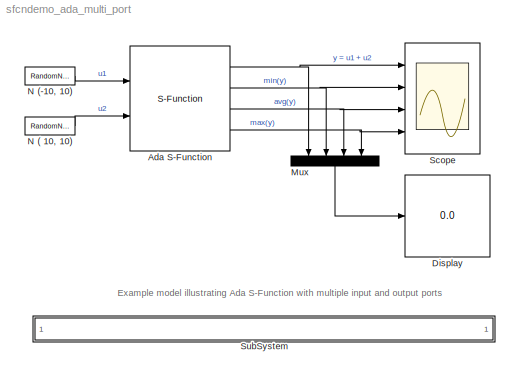
MODEL sfcndemo_ada_multi_port
KIND model
BLOCK [S-Function] Ada S-Function
  FunctionName = ada_multi_port
  Parameters = '++'
  Ports = [2, 4]
BLOCK [Display] Display
  Decimation = 1
  Ports = [1]
BLOCK [Mux] Mux
  DisplayOption = bar
  Ports = [4, 1]
BLOCK [RandomNumber] N ( 10, 10)
  Mean = 10
  SampleTime = 0
  Seed = 1
  Variance = 10
BLOCK [RandomNumber] N (-10, 10)
  Mean = -10
  SampleTime = 0
  Variance = 10
BLOCK [Scope] Scope
  DataFormat = Structure
  NumInputPorts = 4
  Ports = [4]
  SaveToWorkspace = on
  TimeRange = 1000
  YMax = 20~20~0.5~20
  YMin = -20~-20~-0.5~-20
BLOCK [SubSystem] SubSystem
  MaskDisplay = disp('matlabroot<path>');
  MaskIconFrame = on
  MaskIconOpaque = on
  MaskIconRotate = none
  MaskIconUnits = autoscale
  MinAlgLoopOccurrences = off
  OpenFcn = evalin('base','edit(fullfile(matlabroot,''simulink'',''ada'',''examples'',''multi_port'',''multi_port.adb''))')
  Ports = []
  PropExecContextAcrossSSBoundary = on
  RTWSystemCode = Auto
  TreatAsAtomicUnit = off
ANNOTATION (root): Example model illustrating Ada S-Function with multiple input and output ports
NET Ada S-Function:1 -> Mux:1, Scope:1
NET Ada S-Function:2 -> Mux:2, Scope:2
NET Ada S-Function:3 -> Mux:3, Scope:3
NET Ada S-Function:4 -> Mux:4, Scope:4
LINE Mux:1 -> Display:1
LINE N ( 10, 10):1 -> Ada S-Function:2
LINE N (-10, 10):1 -> Ada S-Function:1
note: NET lines group one-source signal fan-out (src -> all destinations, sorted); 1:1 wires keep LINE
note: 1 file-system path scrubbed to <path> (not preserved elsewhere — flat text is the only slx artifact)
